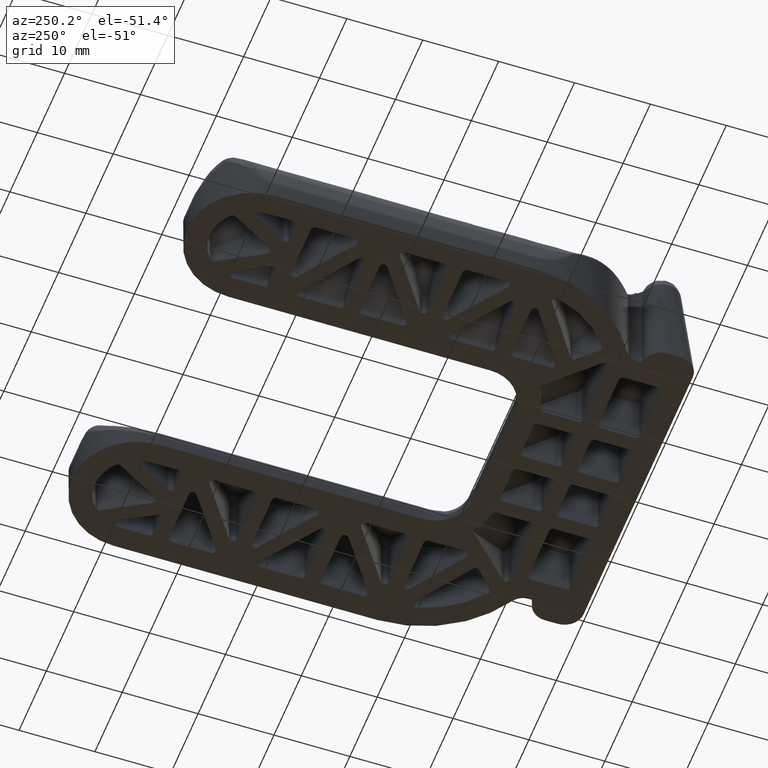
[diagram: clean part render]
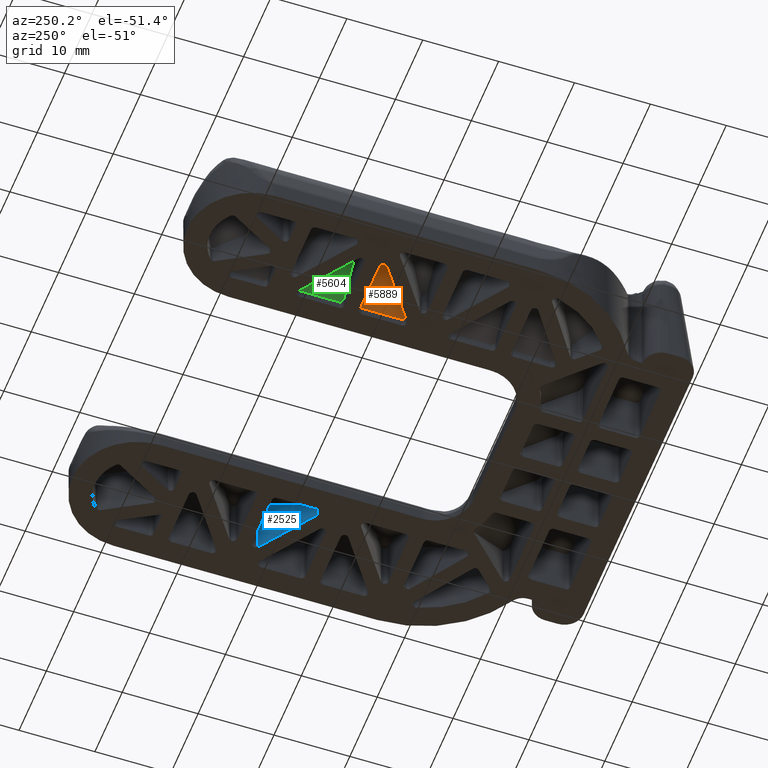
[diagram: same view with three faces highlighted in distinct colors, each labeled with its STEP entity id]
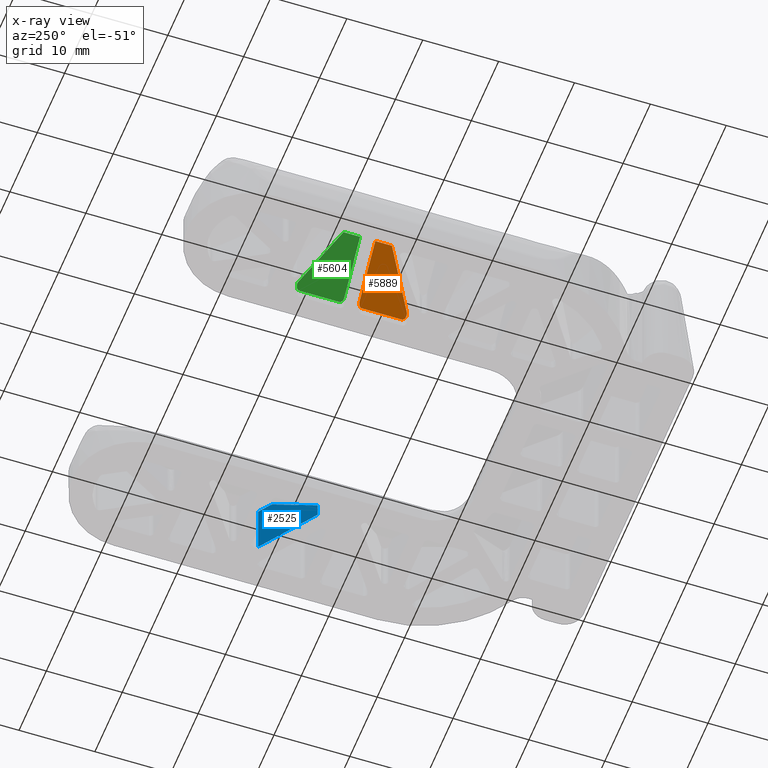
[diagram: x-ray of the same camera — body ghosted, the three highlighted faces saturated]
A machine part, auxiliary view with three faces highlighted in distinct colors.
The next image is the same camera in x-ray (body ghosted, the three faces saturated) — at least one of them is partly hidden behind the body in this view.
Their STEP definitions:

[orange] entity #5889 — the highlighted face is a freeform B-spline surface patch.
#669=CARTESIAN_POINT('',(-21.814116976440548,40.310416020878101,6.871029926891649));
#670=VERTEX_POINT('',#669);
#686=CARTESIAN_POINT('',(-21.814116976440499,42.500000000000000,6.871029926891429));
#687=VERTEX_POINT('',#686);
#696=CARTESIAN_POINT('',(-21.814116976440548,40.310416020878101,6.871029926891649));
#697=CARTESIAN_POINT('',(-21.814116976440499,42.500000000000000,6.871029926891429));
#698=QUASI_UNIFORM_CURVE('',1,(#696,#697),.UNSPECIFIED.,.F.,.U.);
#699=EDGE_CURVE('',#670,#687,#698,.T.);
#5630=CARTESIAN_POINT('',(-16.290619112634751,36.365060080453347,1.881423838125560));
#5631=VERTEX_POINT('',#5630);
#5632=CARTESIAN_POINT('',(-16.290619112634751,36.365060080453347,1.881423838125560));
#5633=CARTESIAN_POINT('',(-21.814116976440548,40.310416020878101,6.871029926891649));
#5634=QUASI_UNIFORM_CURVE('',1,(#5632,#5633),.UNSPECIFIED.,.F.,.U.);
#5635=EDGE_CURVE('',#5631,#670,#5634,.T.);
#5664=CARTESIAN_POINT('',(-16.0,42.500000000000000,1.618895467576710));
#5665=VERTEX_POINT('',#5664);
#5666=CARTESIAN_POINT('',(-21.814116976440499,42.500000000000000,6.871029926891429));
#5667=CARTESIAN_POINT('',(-16.0,42.500000000000000,1.618895467576710));
#5668=QUASI_UNIFORM_CURVE('',1,(#5666,#5667),.UNSPECIFIED.,.F.,.U.);
#5669=EDGE_CURVE('',#687,#5665,#5668,.T.);
#5715=CARTESIAN_POINT('',(-15.500000000000000,36.771926804788812,1.167224605036808));
#5716=VERTEX_POINT('',#5715);
#5722=CARTESIAN_POINT('',(-15.500000000000000,42.0,1.167224605036808));
#5723=VERTEX_POINT('',#5722);
#5724=CARTESIAN_POINT('',(-15.500000000000000,42.0,1.167224605036808));
#5725=CARTESIAN_POINT('',(-15.500000000000000,36.771926804788812,1.167224605036808));
#5726=QUASI_UNIFORM_CURVE('',1,(#5724,#5725),.UNSPECIFIED.,.F.,.U.);
#5727=EDGE_CURVE('',#5723,#5716,#5726,.T.);
#5751=CARTESIAN_POINT('',(-15.500000000000000,42.0,1.167224605036869));
#5752=CARTESIAN_POINT('',(-15.499999999999996,42.499999999999922,1.167224605036869));
#5753=CARTESIAN_POINT('',(-16.0,42.500000000000000,1.618895467576710));
#5761=(BOUNDED_CURVE()B_SPLINE_CURVE(2,(#5751,#5752,#5753),.UNSPECIFIED.,.F.,.U.)CURVE()GEOMETRIC_REPRESENTATION_ITEM()QUASI_UNIFORM_CURVE()RATIONAL_B_SPLINE_CURVE((1.0,0.707106781186606,1.0))REPRESENTATION_ITEM(''));
#5762=EDGE_CURVE('',#5723,#5665,#5761,.T.);
#5793=CARTESIAN_POINT('',(-16.290619112634751,36.365060080453347,1.881423838125560));
#5794=CARTESIAN_POINT('',(-16.042418436379638,36.187773868595208,1.657213811071254));
#5795=CARTESIAN_POINT('',(-15.771209218189821,36.327342978993663,1.412219208054061));
#5796=CARTESIAN_POINT('',(-15.499999999999998,36.466912089392117,1.167224605036869));
#5797=CARTESIAN_POINT('',(-15.500000000000000,36.771926804788848,1.167224605036869));
#5805=(BOUNDED_CURVE()B_SPLINE_CURVE(2,(#5793,#5794,#5795,#5796,#5797),.UNSPECIFIED.,.F.,.U.)B_SPLINE_CURVE_WITH_KNOTS((3,2,3),(0.0,0.500000000000000,1.0),.UNSPECIFIED.)CURVE()GEOMETRIC_REPRESENTATION_ITEM()RATIONAL_B_SPLINE_CURVE((1.0,0.853692439822552,1.0,0.853692439822552,1.0))REPRESENTATION_ITEM(''));
#5806=EDGE_CURVE('',#5631,#5716,#5805,.T.);
#5876=CARTESIAN_POINT('',(-22.129507344265431,35.960858679895154,7.155935205836171));
#5877=CARTESIAN_POINT('',(-15.184609688627731,35.960858679895154,0.882319377088259));
#5878=CARTESIAN_POINT('',(-22.129507344265431,42.811091263642552,7.155935205836171));
#5879=CARTESIAN_POINT('',(-15.184609688627731,42.811091263642552,0.882319377088259));
#5880=B_SPLINE_SURFACE_WITH_KNOTS('',1,1,((#5876,#5878),(#5877,#5879)),.UNSPECIFIED.,.F.,.F.,.U.,(2,2),(2,2),(0.0,9.358945400738184),(0.0,6.850232583747399),.UNSPECIFIED.);
#5881=ORIENTED_EDGE('',*,*,#5635,.T.);
#5882=ORIENTED_EDGE('',*,*,#699,.T.);
#5883=ORIENTED_EDGE('',*,*,#5669,.T.);
#5884=ORIENTED_EDGE('',*,*,#5762,.F.);
#5885=ORIENTED_EDGE('',*,*,#5727,.T.);
#5886=ORIENTED_EDGE('',*,*,#5806,.F.);
#5887=EDGE_LOOP('',(#5881,#5882,#5883,#5884,#5885,#5886));
#5888=FACE_OUTER_BOUND('',#5887,.T.);
#5889=ADVANCED_FACE('',(#5888),#5880,.F.);

[blue] entity #2525 — the highlighted face is a freeform B-spline surface patch.
#222=CARTESIAN_POINT('',(22.149283790655151,40.549820907799493,6.999999999999901));
#223=VERTEX_POINT('',#222);
#229=CARTESIAN_POINT('',(21.814116976440548,40.310416020878101,6.871029926891649));
#230=VERTEX_POINT('',#229);
#231=CARTESIAN_POINT('',(21.814116976440548,40.310416020878101,6.871029926891649));
#232=CARTESIAN_POINT('',(21.856654213524770,40.340799764143277,6.907894224617619));
#233=CARTESIAN_POINT('',(21.963282535573061,40.416962857564187,6.975747222861031));
#234=CARTESIAN_POINT('',(22.082355192557230,40.502014762382103,7.000639664883821));
#235=CARTESIAN_POINT('',(22.149283790655151,40.549820907799493,6.999999999999901));
#236=B_SPLINE_CURVE_WITH_KNOTS('',3,(#231,#232,#233,#234,#235),.UNSPECIFIED.,.F.,.U.,(4,1,4),(0.000000018436809,0.191907501556346,0.438645508020846),.UNSPECIFIED.);
#237=EDGE_CURVE('',#230,#223,#236,.T.);
#2484=CARTESIAN_POINT('',(23.975519164547791,41.854274853226919,7.349649986432538));
#2485=CARTESIAN_POINT('',(15.925019298025790,36.103917334325608,7.349649986432538));
#2486=CARTESIAN_POINT('',(23.975519164547791,41.854274853226919,-0.349650174187268));
#2487=CARTESIAN_POINT('',(15.925019298025790,36.103917334325608,-0.349650174187268));
#2488=B_SPLINE_SURFACE_WITH_KNOTS('',1,1,((#2484,#2486),(#2485,#2487)),.UNSPECIFIED.,.F.,.F.,.U.,(2,2),(2,2),(0.0,9.893288618859538),(0.0,7.699300160619806),.UNSPECIFIED.);
#2489=CARTESIAN_POINT('',(16.290619112634751,36.365060080453347,1.881423838125560));
#2490=VERTEX_POINT('',#2489);
#2491=CARTESIAN_POINT('',(21.814116976440548,40.310416020878101,6.871029926891649));
#2492=CARTESIAN_POINT('',(16.290619112634751,36.365060080453347,1.881423838125560));
#2493=QUASI_UNIFORM_CURVE('',1,(#2491,#2492),.UNSPECIFIED.,.F.,.U.);
#2494=EDGE_CURVE('',#230,#2490,#2493,.T.);
#2495=ORIENTED_EDGE('',*,*,#2494,.F.);
#2496=ORIENTED_EDGE('',*,*,#237,.T.);
#2497=CARTESIAN_POINT('',(23.609920985930401,41.593133275664499,6.999999999999901));
#2498=VERTEX_POINT('',#2497);
#2499=CARTESIAN_POINT('',(22.149283790655151,40.549820907799493,6.999999999999901));
#2500=CARTESIAN_POINT('',(23.609920985930401,41.593133275664499,6.999999999999901));
#2501=QUASI_UNIFORM_CURVE('',1,(#2499,#2500),.UNSPECIFIED.,.F.,.U.);
#2502=EDGE_CURVE('',#223,#2498,#2501,.T.);
#2503=ORIENTED_EDGE('',*,*,#2502,.T.);
#2504=CARTESIAN_POINT('',(23.609920985930401,41.593133275664499,0.0));
#2505=VERTEX_POINT('',#2504);
#2506=CARTESIAN_POINT('',(23.609920985930401,41.593133275664499,0.0));
#2507=CARTESIAN_POINT('',(23.609920985930401,41.593133275664499,6.999999999999901));
#2508=QUASI_UNIFORM_CURVE('',1,(#2506,#2507),.UNSPECIFIED.,.F.,.U.);
#2509=EDGE_CURVE('',#2505,#2498,#2508,.T.);
#2510=ORIENTED_EDGE('',*,*,#2509,.F.);
#2511=CARTESIAN_POINT('',(16.290619112634712,36.365060080453347,-2.491258E-017));
#2512=VERTEX_POINT('',#2511);
#2513=CARTESIAN_POINT('',(16.290619112634712,36.365060080453347,-2.491258E-017));
#2514=CARTESIAN_POINT('',(23.609920985930401,41.593133275664499,0.0));
#2515=QUASI_UNIFORM_CURVE('',1,(#2513,#2514),.UNSPECIFIED.,.F.,.U.);
#2516=EDGE_CURVE('',#2512,#2505,#2515,.T.);
#2517=ORIENTED_EDGE('',*,*,#2516,.F.);
#2518=CARTESIAN_POINT('',(16.290619112634751,36.365060080453347,1.881423838125560));
#2519=CARTESIAN_POINT('',(16.290619112634712,36.365060080453347,-2.491258E-017));
#2520=QUASI_UNIFORM_CURVE('',1,(#2518,#2519),.UNSPECIFIED.,.F.,.U.);
#2521=EDGE_CURVE('',#2490,#2512,#2520,.T.);
#2522=ORIENTED_EDGE('',*,*,#2521,.F.);
#2523=EDGE_LOOP('',(#2495,#2496,#2503,#2510,#2517,#2522));
#2524=FACE_OUTER_BOUND('',#2523,.T.);
#2525=ADVANCED_FACE('',(#2524),#2488,.F.);

[green] entity #5604 — the highlighted face is a freeform B-spline surface patch.
#616=CARTESIAN_POINT('',(-21.814116976440651,46.689584733769898,6.871029926891589));
#617=VERTEX_POINT('',#616);
#628=CARTESIAN_POINT('',(-21.814116976440499,44.500000000000000,6.871029926891429));
#629=VERTEX_POINT('',#628);
#630=CARTESIAN_POINT('',(-21.814116976440499,44.500000000000000,6.871029926891429));
#631=CARTESIAN_POINT('',(-21.814116976440651,46.689584733769898,6.871029926891589));
#632=QUASI_UNIFORM_CURVE('',1,(#630,#631),.UNSPECIFIED.,.F.,.U.);
#633=EDGE_CURVE('',#629,#617,#632,.T.);
#5337=CARTESIAN_POINT('',(-16.290619075826349,50.634939945838298,1.881423804874825));
#5338=VERTEX_POINT('',#5337);
#5339=CARTESIAN_POINT('',(-16.290619075826349,50.634939945838298,1.881423804874825));
#5340=CARTESIAN_POINT('',(-21.814116976440651,46.689584733769898,6.871029926891589));
#5341=QUASI_UNIFORM_CURVE('',1,(#5339,#5340),.UNSPECIFIED.,.F.,.U.);
#5342=EDGE_CURVE('',#5338,#617,#5341,.T.);
#5387=CARTESIAN_POINT('',(-16.0,44.500000000000000,1.618895467576710));
#5388=VERTEX_POINT('',#5387);
#5389=CARTESIAN_POINT('',(-21.814116976440499,44.500000000000000,6.871029926891429));
#5390=CARTESIAN_POINT('',(-16.0,44.500000000000000,1.618895467576710));
#5391=QUASI_UNIFORM_CURVE('',1,(#5389,#5390),.UNSPECIFIED.,.F.,.U.);
#5392=EDGE_CURVE('',#629,#5388,#5391,.T.);
#5481=CARTESIAN_POINT('',(-15.500000000000000,45.0,1.167224605036808));
#5482=VERTEX_POINT('',#5481);
#5488=CARTESIAN_POINT('',(-15.500000000000000,50.228073195211202,1.167224605036808));
#5489=VERTEX_POINT('',#5488);
#5490=CARTESIAN_POINT('',(-15.500000000000000,50.228073195211202,1.167224605036808));
#5491=CARTESIAN_POINT('',(-15.500000000000000,45.0,1.167224605036808));
#5492=QUASI_UNIFORM_CURVE('',1,(#5490,#5491),.UNSPECIFIED.,.F.,.U.);
#5493=EDGE_CURVE('',#5489,#5482,#5492,.T.);
#5517=CARTESIAN_POINT('',(-15.500000000000000,50.228073195211202,1.167224605036808));
#5518=CARTESIAN_POINT('',(-15.499999999999998,50.533087895090979,1.167224605036869));
#5519=CARTESIAN_POINT('',(-15.771209198079440,50.672657010657133,1.412219189887515));
#5520=CARTESIAN_POINT('',(-16.042418396158880,50.812226126223287,1.657213774738161));
#5521=CARTESIAN_POINT('',(-16.290619075826349,50.634939945838298,1.881423804874825));
#5529=(BOUNDED_CURVE()B_SPLINE_CURVE(2,(#5517,#5518,#5519,#5520,#5521),.UNSPECIFIED.,.F.,.U.)B_SPLINE_CURVE_WITH_KNOTS((3,2,3),(0.0,0.500000000000000,1.0),.UNSPECIFIED.)CURVE()GEOMETRIC_REPRESENTATION_ITEM()RATIONAL_B_SPLINE_CURVE((1.0,0.853692451601021,1.0,0.853692451601021,1.0))REPRESENTATION_ITEM(''));
#5530=EDGE_CURVE('',#5489,#5338,#5529,.T.);
#5563=CARTESIAN_POINT('',(-16.0,44.500000000000000,1.618895467576710));
#5564=CARTESIAN_POINT('',(-15.500000000000005,44.500000000000000,1.167224605036869));
#5565=CARTESIAN_POINT('',(-15.500000000000000,45.0,1.167224605036869));
#5573=(BOUNDED_CURVE()B_SPLINE_CURVE(2,(#5563,#5564,#5565),.UNSPECIFIED.,.F.,.U.)CURVE()GEOMETRIC_REPRESENTATION_ITEM()QUASI_UNIFORM_CURVE()RATIONAL_B_SPLINE_CURVE((1.0,0.707106781186547,1.0))REPRESENTATION_ITEM(''));
#5574=EDGE_CURVE('',#5388,#5482,#5573,.T.);
#5591=CARTESIAN_POINT('',(-22.129507344265470,44.188908906021098,7.155935205836193));
#5592=CARTESIAN_POINT('',(-15.184609688627731,44.188908906021098,0.882319377088260));
#5593=CARTESIAN_POINT('',(-22.129507344265470,51.039141432200672,7.155935205836192));
#5594=CARTESIAN_POINT('',(-15.184609688627731,51.039141432200672,0.882319377088260));
#5595=B_SPLINE_SURFACE_WITH_KNOTS('',1,1,((#5591,#5593),(#5592,#5594)),.UNSPECIFIED.,.F.,.F.,.U.,(2,2),(2,2),(0.0,9.358945400738223),(0.0,6.850232526179575),.UNSPECIFIED.);
#5596=ORIENTED_EDGE('',*,*,#5392,.F.);
#5597=ORIENTED_EDGE('',*,*,#633,.T.);
#5598=ORIENTED_EDGE('',*,*,#5342,.F.);
#5599=ORIENTED_EDGE('',*,*,#5530,.F.);
#5600=ORIENTED_EDGE('',*,*,#5493,.T.);
#5601=ORIENTED_EDGE('',*,*,#5574,.F.);
#5602=EDGE_LOOP('',(#5596,#5597,#5598,#5599,#5600,#5601));
#5603=FACE_OUTER_BOUND('',#5602,.T.);
#5604=ADVANCED_FACE('',(#5603),#5595,.F.);